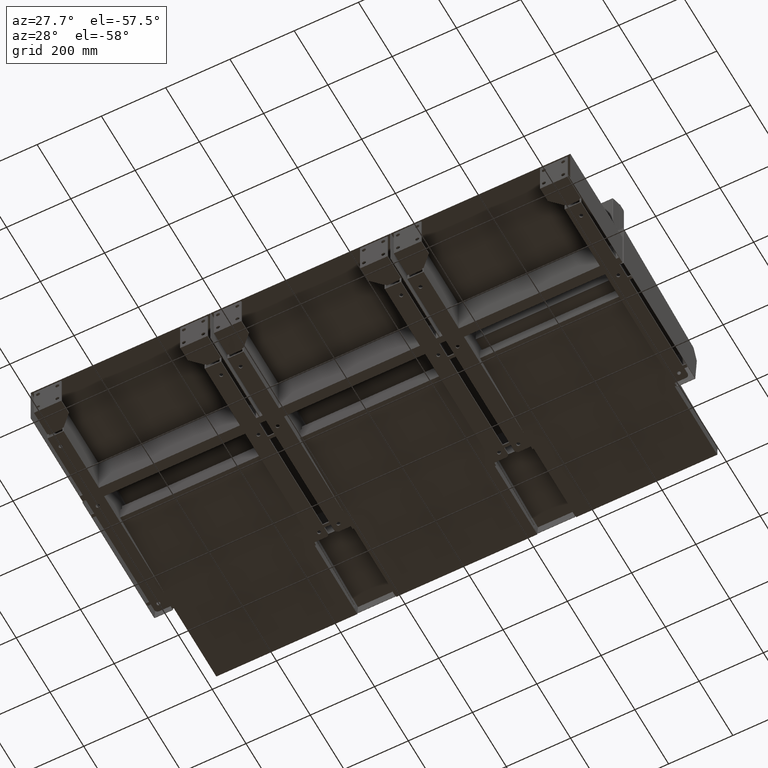
[diagram: clean part render]
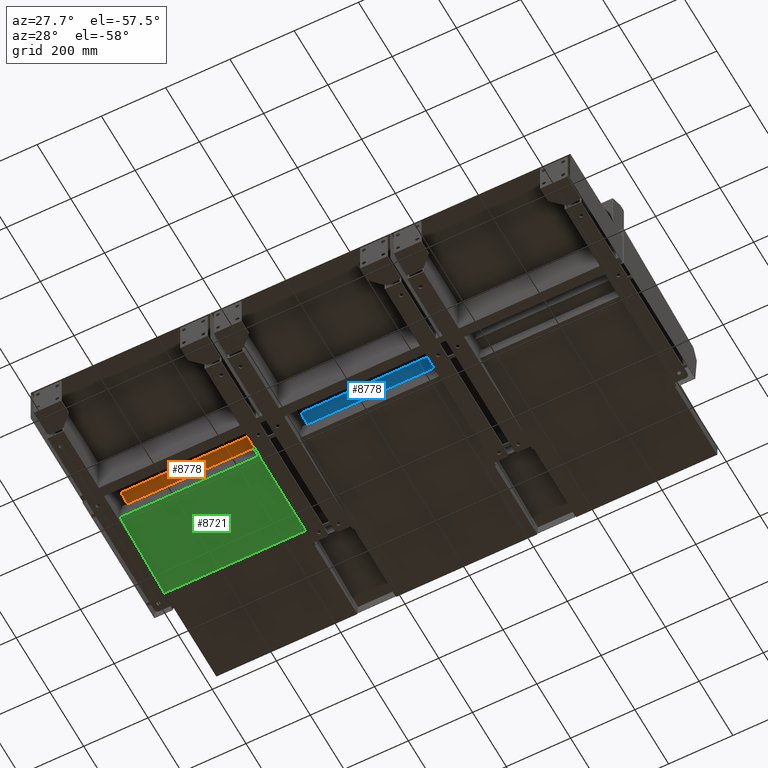
[diagram: same view with three faces highlighted in distinct colors, each labeled with its STEP entity id]
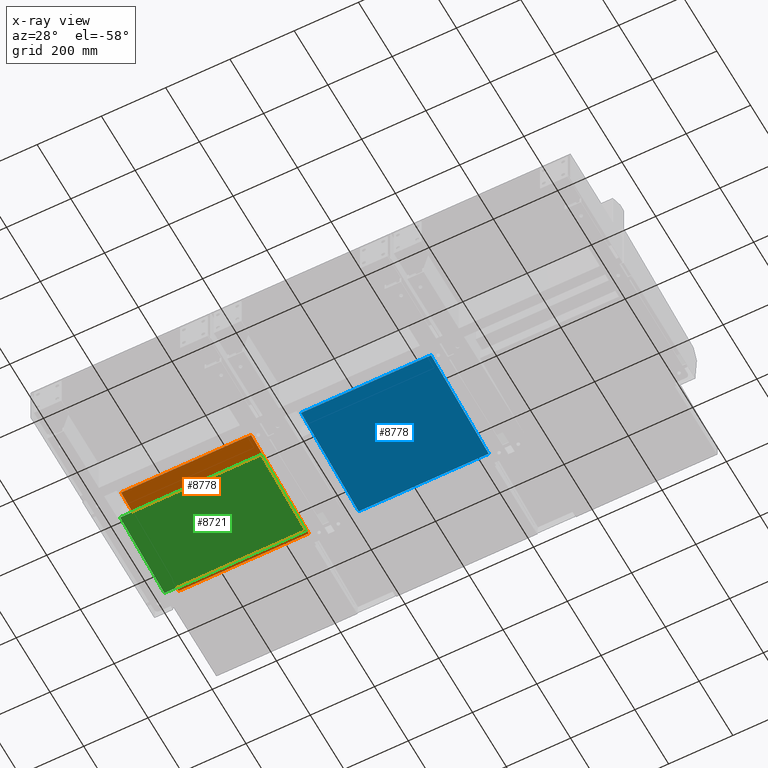
[diagram: x-ray of the same camera — body ghosted, the three highlighted faces saturated]
A machine part, auxiliary view with three faces highlighted in distinct colors.
The next image is the same camera in x-ray (body ghosted, the three faces saturated) — at least one of them is partly hidden behind the body in this view.
Their STEP definitions:

[orange] entity #8778 — the highlighted planar face has unit normal (0, 0.0872, 0.9962).
#1013 = EDGE_LOOP ( 'NONE', ( #1346, #1345, #1344, #1343 ) ) ;
#1343 = ORIENTED_EDGE ( 'NONE', *, *, #6661, .T. ) ;
#1344 = ORIENTED_EDGE ( 'NONE', *, *, #6662, .T. ) ;
#1345 = ORIENTED_EDGE ( 'NONE', *, *, #6663, .T. ) ;
#1346 = ORIENTED_EDGE ( 'NONE', *, *, #6664, .T. ) ;
#4143 = PLANE ( 'NONE',  #4567 ) ;
#4144 = CARTESIAN_POINT ( 'NONE',  ( 214.5000000000000000, 50.99999999999996400, 348.0000000000000000 ) ) ;
#4145 = DIRECTION ( 'NONE',  ( 0.0000000000000000000, -1.000000000000000000, 0.0000000000000000000 ) ) ;
#4146 = DIRECTION ( 'NONE',  ( 0.0000000000000000000, -0.0000000000000000000, -1.000000000000000000 ) ) ;
#4567 = AXIS2_PLACEMENT_3D ( 'NONE', #4144, #4145, #4146 ) ;
#5936 = FACE_OUTER_BOUND ( 'NONE', #1013, .T. ) ;
#6661 = EDGE_CURVE ( 'NONE', #9783, #9748, #10535, .T. ) ;
#6662 = EDGE_CURVE ( 'NONE', #9935, #9783, #10534, .T. ) ;
#6663 = EDGE_CURVE ( 'NONE', #9759, #9935, #10539, .T. ) ;
#6664 = EDGE_CURVE ( 'NONE', #9748, #9759, #10541, .T. ) ;
#7968 = CARTESIAN_POINT ( 'NONE',  ( -202.4999999999999700, 50.99999999999996400, 335.9999999999999400 ) ) ;
#7979 = CARTESIAN_POINT ( 'NONE',  ( 202.4999999999999700, 50.99999999999996400, 335.9999999999999400 ) ) ;
#8003 = CARTESIAN_POINT ( 'NONE',  ( -202.4999999999999700, 50.99999999999996400, -7.000000000000006200 ) ) ;
#8150 = CARTESIAN_POINT ( 'NONE',  ( 202.4999999999999700, 50.99999999999996400, -7.000000000000006200 ) ) ;
#8778 = ADVANCED_FACE ( 'NONE', ( #5936 ), #4143, .F. ) ;
#8990 = CARTESIAN_POINT ( 'NONE',  ( 214.5000000000000000, 50.99999999999996400, -7.000000000000006200 ) ) ;
#8992 = CARTESIAN_POINT ( 'NONE',  ( -202.4999999999999700, 50.99999999999996400, 348.0000000000000000 ) ) ;
#8993 = DIRECTION ( 'NONE',  ( 0.0000000000000000000, 0.0000000000000000000, 1.000000000000000000 ) ) ;
#8994 = DIRECTION ( 'NONE',  ( -1.000000000000000000, 0.0000000000000000000, 0.0000000000000000000 ) ) ;
#8995 = CARTESIAN_POINT ( 'NONE',  ( 202.4999999999999700, 50.99999999999996400, -19.00000000000001800 ) ) ;
#8996 = DIRECTION ( 'NONE',  ( -0.0000000000000000000, -0.0000000000000000000, -1.000000000000000000 ) ) ;
#8997 = CARTESIAN_POINT ( 'NONE',  ( 214.5000000000000000, 50.99999999999996400, 335.9999999999999400 ) ) ;
#8998 = DIRECTION ( 'NONE',  ( 1.000000000000000000, -0.0000000000000000000, -0.0000000000000000000 ) ) ;
#9748 = VERTEX_POINT ( 'NONE', #7968 ) ;
#9759 = VERTEX_POINT ( 'NONE', #7979 ) ;
#9783 = VERTEX_POINT ( 'NONE', #8003 ) ;
#9935 = VERTEX_POINT ( 'NONE', #8150 ) ;
#10534 = LINE ( 'NONE', #8990, #10540 ) ;
#10535 = LINE ( 'NONE', #8992, #10538 ) ;
#10538 = VECTOR ( 'NONE', #8993, 1000.000000000000000 ) ;
#10539 = LINE ( 'NONE', #8995, #10542 ) ;
#10540 = VECTOR ( 'NONE', #8994, 1000.000000000000000 ) ;
#10541 = LINE ( 'NONE', #8997, #10544 ) ;
#10542 = VECTOR ( 'NONE', #8996, 1000.000000000000000 ) ;
#10544 = VECTOR ( 'NONE', #8998, 1000.000000000000000 ) ;

[blue] entity #8778 — the highlighted planar face has unit normal (0, 0.0872, 0.9962).
#1013 = EDGE_LOOP ( 'NONE', ( #1346, #1345, #1344, #1343 ) ) ;
#1343 = ORIENTED_EDGE ( 'NONE', *, *, #6661, .T. ) ;
#1344 = ORIENTED_EDGE ( 'NONE', *, *, #6662, .T. ) ;
#1345 = ORIENTED_EDGE ( 'NONE', *, *, #6663, .T. ) ;
#1346 = ORIENTED_EDGE ( 'NONE', *, *, #6664, .T. ) ;
#4143 = PLANE ( 'NONE',  #4567 ) ;
#4144 = CARTESIAN_POINT ( 'NONE',  ( 214.5000000000000000, 50.99999999999996400, 348.0000000000000000 ) ) ;
#4145 = DIRECTION ( 'NONE',  ( 0.0000000000000000000, -1.000000000000000000, 0.0000000000000000000 ) ) ;
#4146 = DIRECTION ( 'NONE',  ( 0.0000000000000000000, -0.0000000000000000000, -1.000000000000000000 ) ) ;
#4567 = AXIS2_PLACEMENT_3D ( 'NONE', #4144, #4145, #4146 ) ;
#5936 = FACE_OUTER_BOUND ( 'NONE', #1013, .T. ) ;
#6661 = EDGE_CURVE ( 'NONE', #9783, #9748, #10535, .T. ) ;
#6662 = EDGE_CURVE ( 'NONE', #9935, #9783, #10534, .T. ) ;
#6663 = EDGE_CURVE ( 'NONE', #9759, #9935, #10539, .T. ) ;
#6664 = EDGE_CURVE ( 'NONE', #9748, #9759, #10541, .T. ) ;
#7968 = CARTESIAN_POINT ( 'NONE',  ( -202.4999999999999700, 50.99999999999996400, 335.9999999999999400 ) ) ;
#7979 = CARTESIAN_POINT ( 'NONE',  ( 202.4999999999999700, 50.99999999999996400, 335.9999999999999400 ) ) ;
#8003 = CARTESIAN_POINT ( 'NONE',  ( -202.4999999999999700, 50.99999999999996400, -7.000000000000006200 ) ) ;
#8150 = CARTESIAN_POINT ( 'NONE',  ( 202.4999999999999700, 50.99999999999996400, -7.000000000000006200 ) ) ;
#8778 = ADVANCED_FACE ( 'NONE', ( #5936 ), #4143, .F. ) ;
#8990 = CARTESIAN_POINT ( 'NONE',  ( 214.5000000000000000, 50.99999999999996400, -7.000000000000006200 ) ) ;
#8992 = CARTESIAN_POINT ( 'NONE',  ( -202.4999999999999700, 50.99999999999996400, 348.0000000000000000 ) ) ;
#8993 = DIRECTION ( 'NONE',  ( 0.0000000000000000000, 0.0000000000000000000, 1.000000000000000000 ) ) ;
#8994 = DIRECTION ( 'NONE',  ( -1.000000000000000000, 0.0000000000000000000, 0.0000000000000000000 ) ) ;
#8995 = CARTESIAN_POINT ( 'NONE',  ( 202.4999999999999700, 50.99999999999996400, -19.00000000000001800 ) ) ;
#8996 = DIRECTION ( 'NONE',  ( -0.0000000000000000000, -0.0000000000000000000, -1.000000000000000000 ) ) ;
#8997 = CARTESIAN_POINT ( 'NONE',  ( 214.5000000000000000, 50.99999999999996400, 335.9999999999999400 ) ) ;
#8998 = DIRECTION ( 'NONE',  ( 1.000000000000000000, -0.0000000000000000000, -0.0000000000000000000 ) ) ;
#9748 = VERTEX_POINT ( 'NONE', #7968 ) ;
#9759 = VERTEX_POINT ( 'NONE', #7979 ) ;
#9783 = VERTEX_POINT ( 'NONE', #8003 ) ;
#9935 = VERTEX_POINT ( 'NONE', #8150 ) ;
#10534 = LINE ( 'NONE', #8990, #10540 ) ;
#10535 = LINE ( 'NONE', #8992, #10538 ) ;
#10538 = VECTOR ( 'NONE', #8993, 1000.000000000000000 ) ;
#10539 = LINE ( 'NONE', #8995, #10542 ) ;
#10540 = VECTOR ( 'NONE', #8994, 1000.000000000000000 ) ;
#10541 = LINE ( 'NONE', #8997, #10544 ) ;
#10542 = VECTOR ( 'NONE', #8996, 1000.000000000000000 ) ;
#10544 = VECTOR ( 'NONE', #8998, 1000.000000000000000 ) ;

[green] entity #8721 — the highlighted planar face has unit normal (0, 0.0872, 0.9962).
#33 = PLANE ( 'NONE',  #7373 ) ;
#34 = CARTESIAN_POINT ( 'NONE',  ( 219.5000000000000000, 1.630301535245939800E-018, -40.15279350173388200 ) ) ;
#39 = DIRECTION ( 'NONE',  ( -0.0000000000000000000, 0.08715574274765433600, 0.9961946980917458800 ) ) ;
#40 = DIRECTION ( 'NONE',  ( 0.0000000000000000000, -0.9961946980917458800, 0.08715574274765433600 ) ) ;
#1952 = EDGE_LOOP ( 'NONE', ( #5283, #5335, #5332, #5284 ) ) ;
#2413 = CARTESIAN_POINT ( 'NONE',  ( 219.5000000000000000, 1.630301535245939800E-018, -40.15279350173388200 ) ) ;
#2415 = DIRECTION ( 'NONE',  ( -1.000000000000000000, -0.0000000000000000000, -0.0000000000000000000 ) ) ;
#2417 = CARTESIAN_POINT ( 'NONE',  ( -219.5000000000000000, 1.630301535245939800E-018, -40.15279350173388200 ) ) ;
#2418 = DIRECTION ( 'NONE',  ( 0.0000000000000000000, 0.9961946980917458800, -0.08715574274765433600 ) ) ;
#2419 = CARTESIAN_POINT ( 'NONE',  ( 219.5000000000000000, 262.2877704774583700, -63.10000000000000100 ) ) ;
#2420 = DIRECTION ( 'NONE',  ( -1.000000000000000000, -0.0000000000000000000, -0.0000000000000000000 ) ) ;
#2421 = CARTESIAN_POINT ( 'NONE',  ( 219.5000000000000000, 1.630301535245939800E-018, -40.15279350173388200 ) ) ;
#2422 = DIRECTION ( 'NONE',  ( 0.0000000000000000000, 0.9961946980917458800, -0.08715574274765433600 ) ) ;
#5283 = ORIENTED_EDGE ( 'NONE', *, *, #6701, .T. ) ;
#5284 = ORIENTED_EDGE ( 'NONE', *, *, #6699, .T. ) ;
#5332 = ORIENTED_EDGE ( 'NONE', *, *, #6703, .F. ) ;
#5335 = ORIENTED_EDGE ( 'NONE', *, *, #6702, .F. ) ;
#5816 = FACE_OUTER_BOUND ( 'NONE', #1952, .T. ) ;
#6699 = EDGE_CURVE ( 'NONE', #9562, #9629, #10602, .T. ) ;
#6701 = EDGE_CURVE ( 'NONE', #9629, #9584, #10606, .T. ) ;
#6702 = EDGE_CURVE ( 'NONE', #9619, #9584, #10608, .T. ) ;
#6703 = EDGE_CURVE ( 'NONE', #9562, #9619, #10610, .T. ) ;
#7373 = AXIS2_PLACEMENT_3D ( 'NONE', #34, #39, #40 ) ;
#7784 = CARTESIAN_POINT ( 'NONE',  ( 219.5000000000000000, 1.630301535245939800E-018, -40.15279350173388200 ) ) ;
#7805 = CARTESIAN_POINT ( 'NONE',  ( -219.5000000000000000, 262.2877704774642200, -63.10000000000000100 ) ) ;
#7840 = CARTESIAN_POINT ( 'NONE',  ( 219.5000000000000000, 262.2877704774455800, -63.10000000000000100 ) ) ;
#7850 = CARTESIAN_POINT ( 'NONE',  ( -219.5000000000000000, 1.630301535245939800E-018, -40.15279350173388200 ) ) ;
#8721 = ADVANCED_FACE ( 'NONE', ( #5816 ), #33, .F. ) ;
#9562 = VERTEX_POINT ( 'NONE', #7784 ) ;
#9584 = VERTEX_POINT ( 'NONE', #7805 ) ;
#9619 = VERTEX_POINT ( 'NONE', #7840 ) ;
#9629 = VERTEX_POINT ( 'NONE', #7850 ) ;
#10602 = LINE ( 'NONE', #2413, #10605 ) ;
#10605 = VECTOR ( 'NONE', #2415, 1000.000000000000000 ) ;
#10606 = LINE ( 'NONE', #2417, #10609 ) ;
#10608 = LINE ( 'NONE', #2419, #10611 ) ;
#10609 = VECTOR ( 'NONE', #2418, 1000.000000000000000 ) ;
#10610 = LINE ( 'NONE', #2421, #10613 ) ;
#10611 = VECTOR ( 'NONE', #2420, 1000.000000000000000 ) ;
#10613 = VECTOR ( 'NONE', #2422, 1000.000000000000000 ) ;